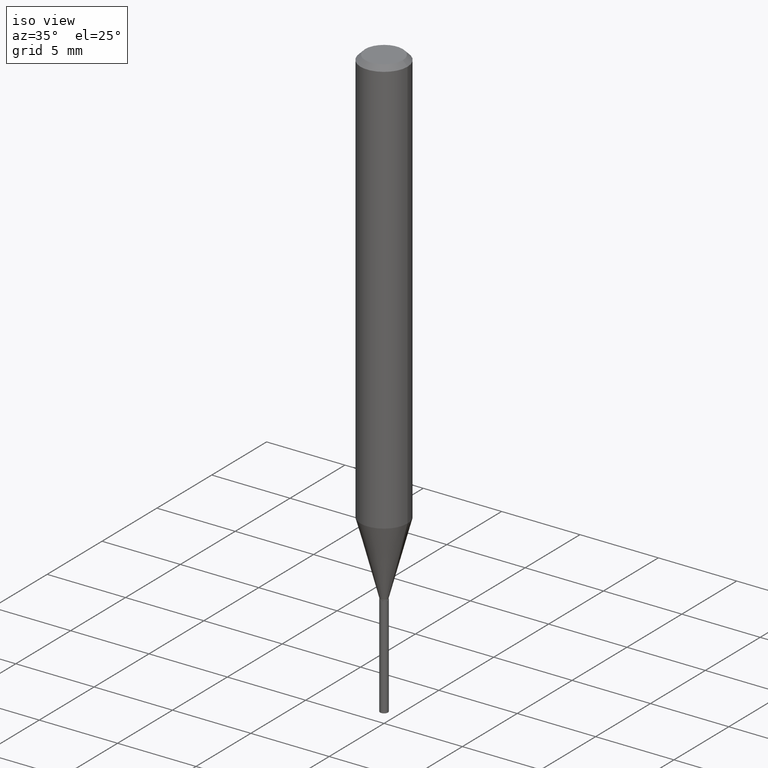
[diagram: clean part render]
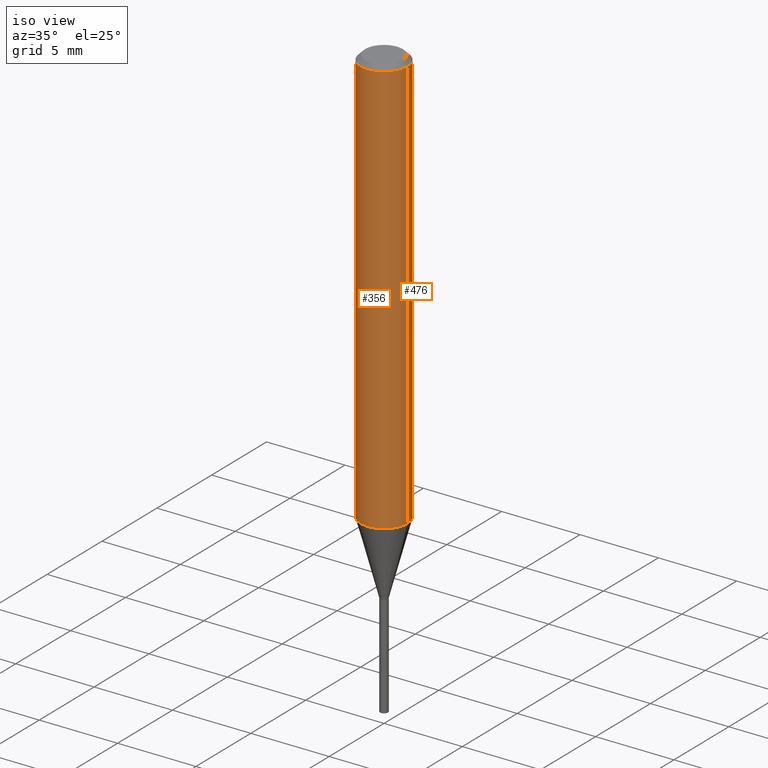
[diagram: same view with one multi-face feature highlighted, each face labeled with its STEP entity id]
A machine part, iso view. The highlighted faces form ONE feature: a constant-radius fillet chain: 2 tangent blend faces with common blend radius 1.4999 mm. The faces share edges in the B-rep.
Their STEP definitions:
[1] entity #356 (Cylinder):
#5 = VECTOR ( 'NONE', #250, 39.37007874015748143 ) ;
#38 = ORIENTED_EDGE ( 'NONE', *, *, #58, .F. ) ;
#56 = CIRCLE ( 'NONE', #88, 0.05904999999999999832 ) ;
#58 = EDGE_CURVE ( 'NONE', #338, #201, #56, .T. ) ;
#62 = CARTESIAN_POINT ( 'NONE',  ( -0.05905000000000006771, 4.195754854663396409E-16, -2.904631170795525045E-30 ) ) ;
#66 = DIRECTION ( 'NONE',  ( -2.445468806185136597E-29, 3.491481338843145583E-15, 1.000000000000000000 ) ) ;
#88 = AXIS2_PLACEMENT_3D ( 'NONE', #163, #314, #312 ) ;
#121 = AXIS2_PLACEMENT_3D ( 'NONE', #433, #66, #361 ) ;
#136 = EDGE_CURVE ( 'NONE', #409, #338, #248, .T. ) ;
#163 = CARTESIAN_POINT ( 'NONE',  ( 2.888098660104663766E-31, -4.123439461173779647E-17, -0.01181000000000007044 ) ) ;
#165 = ORIENTED_EDGE ( 'NONE', *, *, #136, .F. ) ;
#178 = EDGE_CURVE ( 'NONE', #407, #201, #441, .T. ) ;
#189 = CARTESIAN_POINT ( 'NONE',  ( 0.05905000000000013016, -4.075035973384593498E-15, -1.049036690106097236 ) ) ;
#201 = VERTEX_POINT ( 'NONE', #403 ) ;
#203 = AXIS2_PLACEMENT_3D ( 'NONE', #355, #254, #251 ) ;
#206 = ORIENTED_EDGE ( 'NONE', *, *, #178, .T. ) ;
#210 = CARTESIAN_POINT ( 'NONE',  ( 0.05905000000000006771, -4.123439461173745257E-16, 2.879382386107503723E-30 ) ) ;
#222 = CARTESIAN_POINT ( 'NONE',  ( -0.05905000000000013016, -3.243116541800878691E-15, -1.049036690106097236 ) ) ;
#223 = EDGE_CURVE ( 'NONE', #409, #407, #461, .T. ) ;
#248 = LINE ( 'NONE', #62, #389 ) ;
#250 = DIRECTION ( 'NONE',  ( -2.445468806185136877E-29, 3.491481338843145188E-15, 1.000000000000000000 ) ) ;
#251 = DIRECTION ( 'NONE',  ( 1.000000000000000000, -6.982962677686265133E-15, 0.000000000000000000 ) ) ;
#254 = DIRECTION ( 'NONE',  ( -2.445468806185136597E-29, 3.491481338843145583E-15, 1.000000000000000000 ) ) ;
#268 = ORIENTED_EDGE ( 'NONE', *, *, #223, .T. ) ;
#312 = DIRECTION ( 'NONE',  ( 1.000000000000000000, -6.982962677686266711E-15, 0.000000000000000000 ) ) ;
#314 = DIRECTION ( 'NONE',  ( -2.445468806185136597E-29, 3.491481338843145583E-15, 1.000000000000000000 ) ) ;
#322 = FACE_OUTER_BOUND ( 'NONE', #388, .T. ) ;
#338 = VERTEX_POINT ( 'NONE', #440 ) ;
#355 = CARTESIAN_POINT ( 'NONE',  ( 2.565386502198165089E-29, -3.662692027267218578E-15, -1.049036690106097236 ) ) ;
#356 = ADVANCED_FACE ( 'NONE', ( #322 ), #473, .T. ) ;
#361 = DIRECTION ( 'NONE',  ( 1.000000000000000000, -6.982962677686266711E-15, 4.876176775795936353E-29 ) ) ;
#362 = DIRECTION ( 'NONE',  ( -2.445468806185136877E-29, 3.491481338843145188E-15, 1.000000000000000000 ) ) ;
#388 = EDGE_LOOP ( 'NONE', ( #165, #268, #206, #38 ) ) ;
#389 = VECTOR ( 'NONE', #362, 39.37007874015748143 ) ;
#403 = CARTESIAN_POINT ( 'NONE',  ( 0.05904999999999999832, -4.535783407291118600E-16, -0.01181000000000007044 ) ) ;
#407 = VERTEX_POINT ( 'NONE', #189 ) ;
#409 = VERTEX_POINT ( 'NONE', #222 ) ;
#433 = CARTESIAN_POINT ( 'NONE',  ( 0.000000000000000000, 0.000000000000000000, 0.000000000000000000 ) ) ;
#440 = CARTESIAN_POINT ( 'NONE',  ( -0.05904999999999999832, -1.432387725473137872E-15, -0.01181000000000007044 ) ) ;
#441 = LINE ( 'NONE', #210, #5 ) ;
#461 = CIRCLE ( 'NONE', #203, 0.05905000000000013016 ) ;
#473 = CYLINDRICAL_SURFACE ( 'NONE', #121, 0.05905000000000006771 ) ;
[2] entity #476 (Cylinder):
#5 = VECTOR ( 'NONE', #250, 39.37007874015748143 ) ;
#15 = CIRCLE ( 'NONE', #196, 0.05904999999999999832 ) ;
#21 = DIRECTION ( 'NONE',  ( -2.445468806185136597E-29, 3.491481338843145583E-15, 1.000000000000000000 ) ) ;
#43 = DIRECTION ( 'NONE',  ( -2.445468806185136597E-29, 3.491481338843145583E-15, 1.000000000000000000 ) ) ;
#55 = ORIENTED_EDGE ( 'NONE', *, *, #123, .F. ) ;
#62 = CARTESIAN_POINT ( 'NONE',  ( -0.05905000000000006771, 4.195754854663396409E-16, -2.904631170795525045E-30 ) ) ;
#96 = AXIS2_PLACEMENT_3D ( 'NONE', #177, #21, #470 ) ;
#112 = CYLINDRICAL_SURFACE ( 'NONE', #445, 0.05905000000000006771 ) ;
#123 = EDGE_CURVE ( 'NONE', #201, #338, #15, .T. ) ;
#133 = ORIENTED_EDGE ( 'NONE', *, *, #282, .T. ) ;
#136 = EDGE_CURVE ( 'NONE', #409, #338, #248, .T. ) ;
#151 = EDGE_LOOP ( 'NONE', ( #133, #345, #55, #256 ) ) ;
#176 = DIRECTION ( 'NONE',  ( 1.000000000000000000, -6.982962677686266711E-15, 0.000000000000000000 ) ) ;
#177 = CARTESIAN_POINT ( 'NONE',  ( 2.565386502198165089E-29, -3.662692027267218578E-15, -1.049036690106097236 ) ) ;
#178 = EDGE_CURVE ( 'NONE', #407, #201, #441, .T. ) ;
#189 = CARTESIAN_POINT ( 'NONE',  ( 0.05905000000000013016, -4.075035973384593498E-15, -1.049036690106097236 ) ) ;
#196 = AXIS2_PLACEMENT_3D ( 'NONE', #213, #220, #176 ) ;
#201 = VERTEX_POINT ( 'NONE', #403 ) ;
#210 = CARTESIAN_POINT ( 'NONE',  ( 0.05905000000000006771, -4.123439461173745257E-16, 2.879382386107503723E-30 ) ) ;
#213 = CARTESIAN_POINT ( 'NONE',  ( 2.888098660104663766E-31, -4.123439461173779647E-17, -0.01181000000000007044 ) ) ;
#220 = DIRECTION ( 'NONE',  ( -2.445468806185136597E-29, 3.491481338843145583E-15, 1.000000000000000000 ) ) ;
#222 = CARTESIAN_POINT ( 'NONE',  ( -0.05905000000000013016, -3.243116541800878691E-15, -1.049036690106097236 ) ) ;
#225 = CARTESIAN_POINT ( 'NONE',  ( 0.000000000000000000, 0.000000000000000000, 0.000000000000000000 ) ) ;
#240 = CIRCLE ( 'NONE', #96, 0.05905000000000013016 ) ;
#248 = LINE ( 'NONE', #62, #389 ) ;
#250 = DIRECTION ( 'NONE',  ( -2.445468806185136877E-29, 3.491481338843145188E-15, 1.000000000000000000 ) ) ;
#256 = ORIENTED_EDGE ( 'NONE', *, *, #178, .F. ) ;
#282 = EDGE_CURVE ( 'NONE', #407, #409, #240, .T. ) ;
#294 = FACE_OUTER_BOUND ( 'NONE', #151, .T. ) ;
#338 = VERTEX_POINT ( 'NONE', #440 ) ;
#345 = ORIENTED_EDGE ( 'NONE', *, *, #136, .T. ) ;
#362 = DIRECTION ( 'NONE',  ( -2.445468806185136877E-29, 3.491481338843145188E-15, 1.000000000000000000 ) ) ;
#389 = VECTOR ( 'NONE', #362, 39.37007874015748143 ) ;
#403 = CARTESIAN_POINT ( 'NONE',  ( 0.05904999999999999832, -4.535783407291118600E-16, -0.01181000000000007044 ) ) ;
#407 = VERTEX_POINT ( 'NONE', #189 ) ;
#409 = VERTEX_POINT ( 'NONE', #222 ) ;
#440 = CARTESIAN_POINT ( 'NONE',  ( -0.05904999999999999832, -1.432387725473137872E-15, -0.01181000000000007044 ) ) ;
#441 = LINE ( 'NONE', #210, #5 ) ;
#445 = AXIS2_PLACEMENT_3D ( 'NONE', #225, #43, #451 ) ;
#451 = DIRECTION ( 'NONE',  ( 1.000000000000000000, -6.982962677686266711E-15, 4.876176775795936353E-29 ) ) ;
#470 = DIRECTION ( 'NONE',  ( 1.000000000000000000, -6.982962677686265133E-15, 0.000000000000000000 ) ) ;
#476 = ADVANCED_FACE ( 'NONE', ( #294 ), #112, .T. ) ;